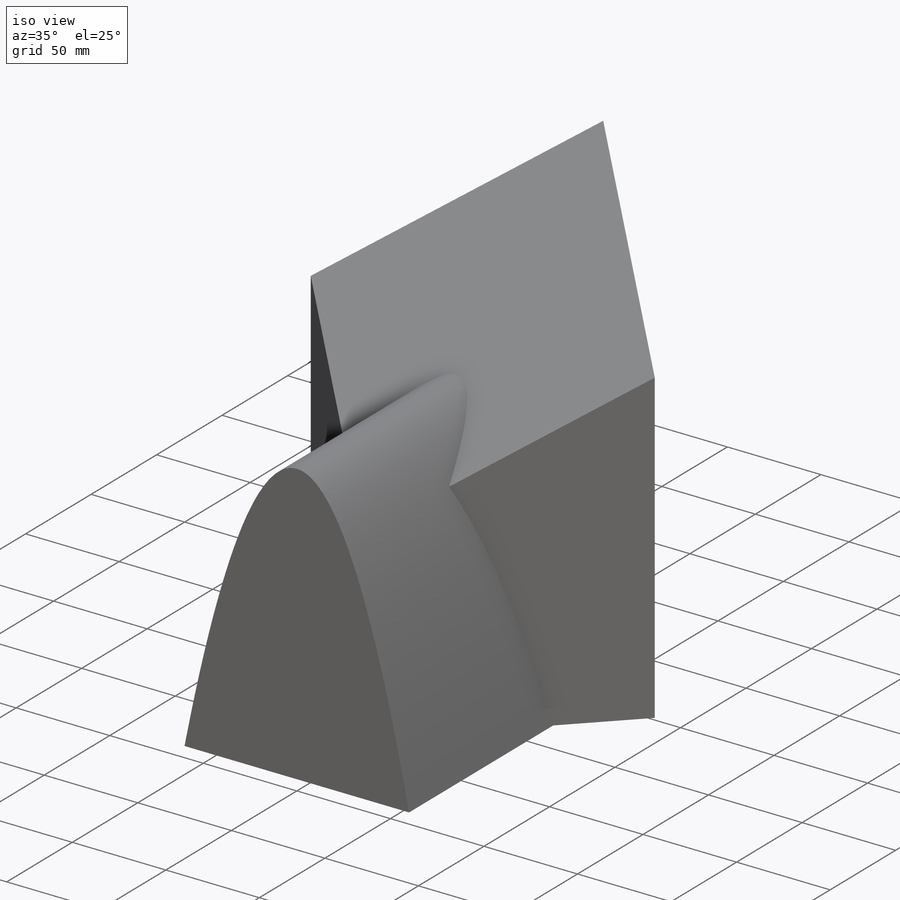
[diagram: iso view]
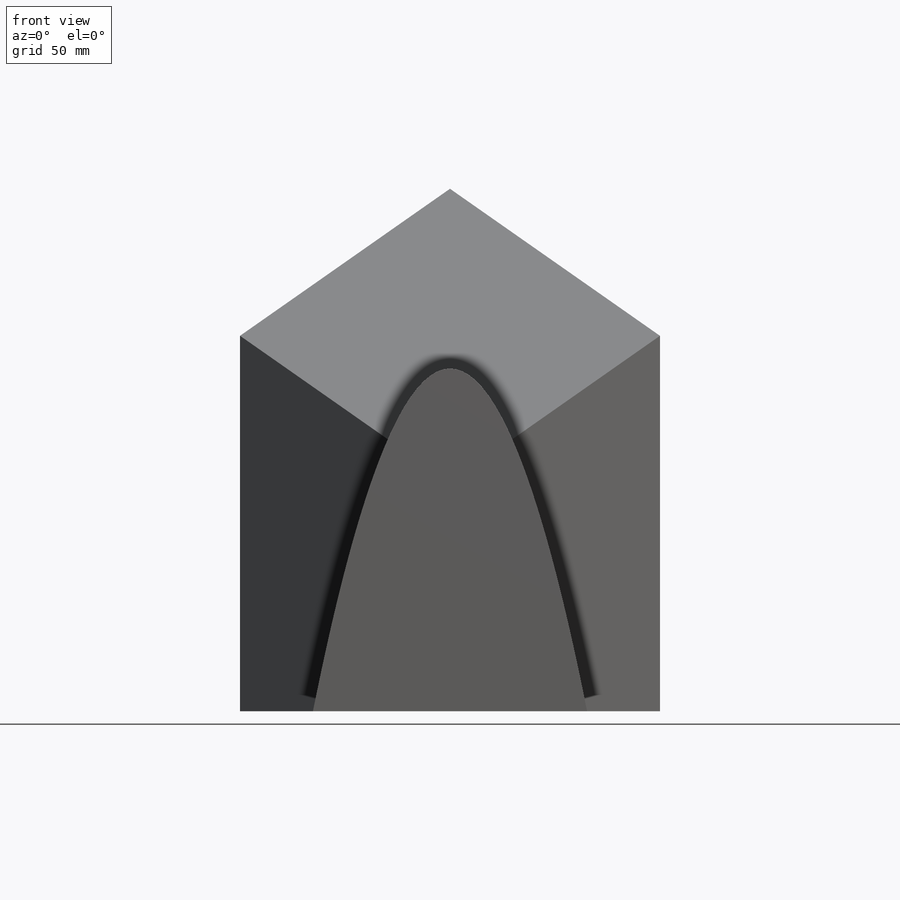
[diagram: front view]
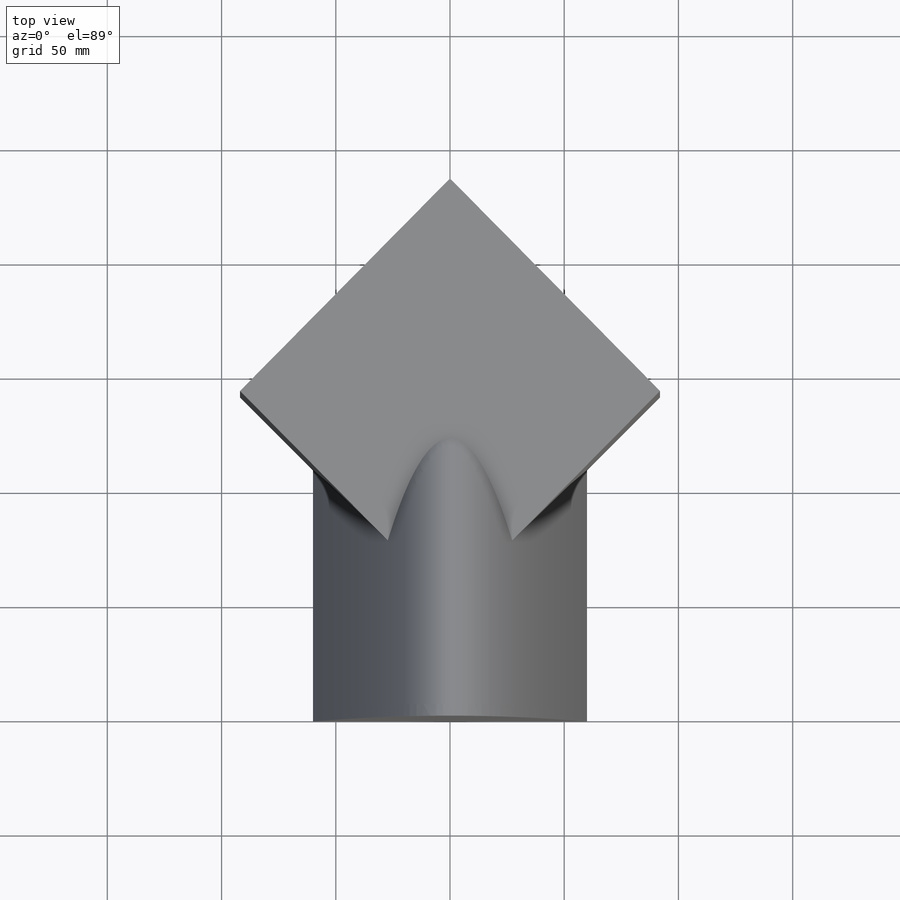
[diagram: top view]
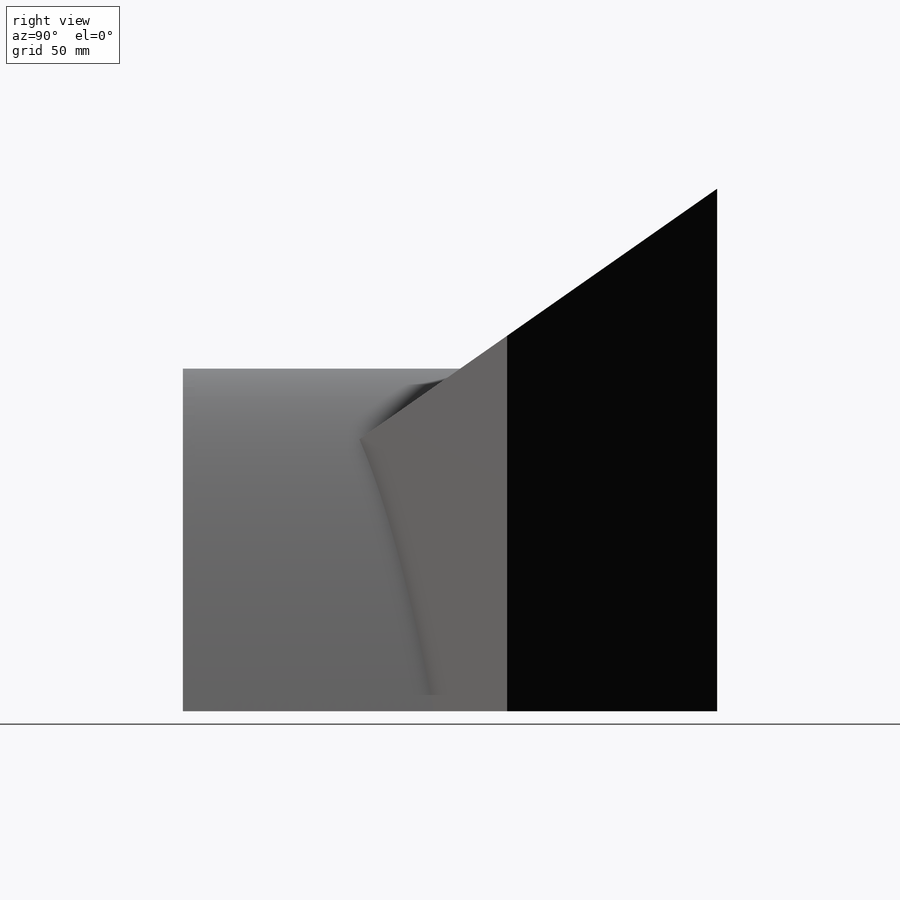
[diagram: right view]
SOLIDWORKS PART (.sldprt)
format: sldprt  version: not decoded by parser v0  size: 235,520 bytes
history: native  units: mm
features: sketch x3, extrude x2, material x1, cut_extrude x1 (+14 scaffold rows collapsed)
feature tree (21):
  scaffold x14  (default folders/planes/origin — collapsed)
  material  "Material <not specified>"
  sketch  "Sketch1"  dims[D1=130.0mm]
  extrude  "Extrude1"  Depth=228.73mm
  sketch  "Sketch2"  dims[c1.D1=100.0mm c1.D2=~90.71213mm c2.D2=35.0deg]
  cut_extrude  "Cut-Extrude1"  Depth=190mm
  sketch  "Sketch3"  dims[c1.D1=~156.000096mm c1.D2=60.0mm c1.D3=60.0mm c2.D1=150.0mm c2.D3=120.0mm c3.D1=60.0mm]
  extrude  "Extrude2"  Depth=50mm
decode coverage: 6 of 6 modeling features carry decoded parameters
note: ~ marks probable driven/reference dimensions
note: suppression state not decoded; provenance and decode notes live in map.json
